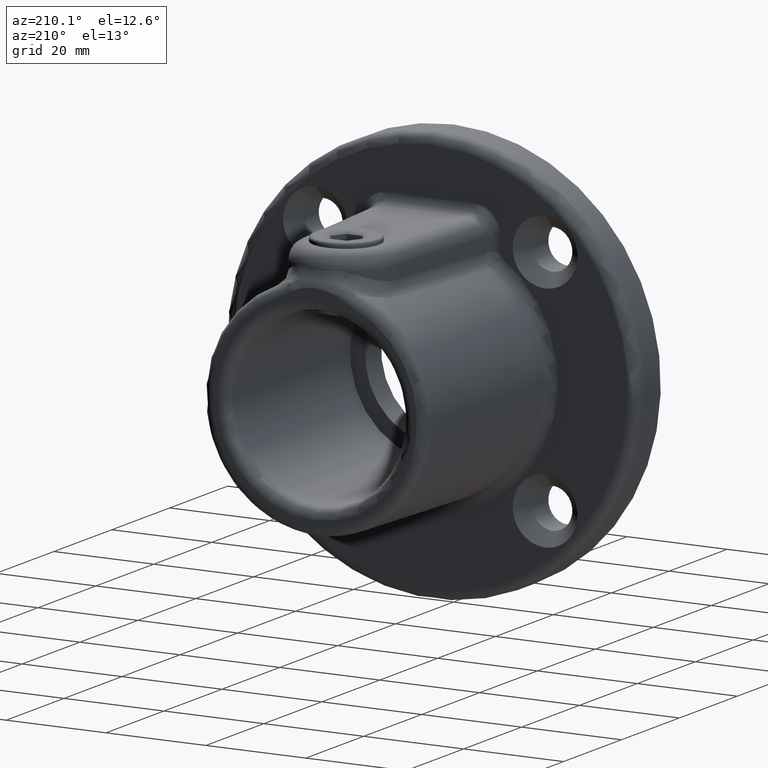
[diagram: clean part render]
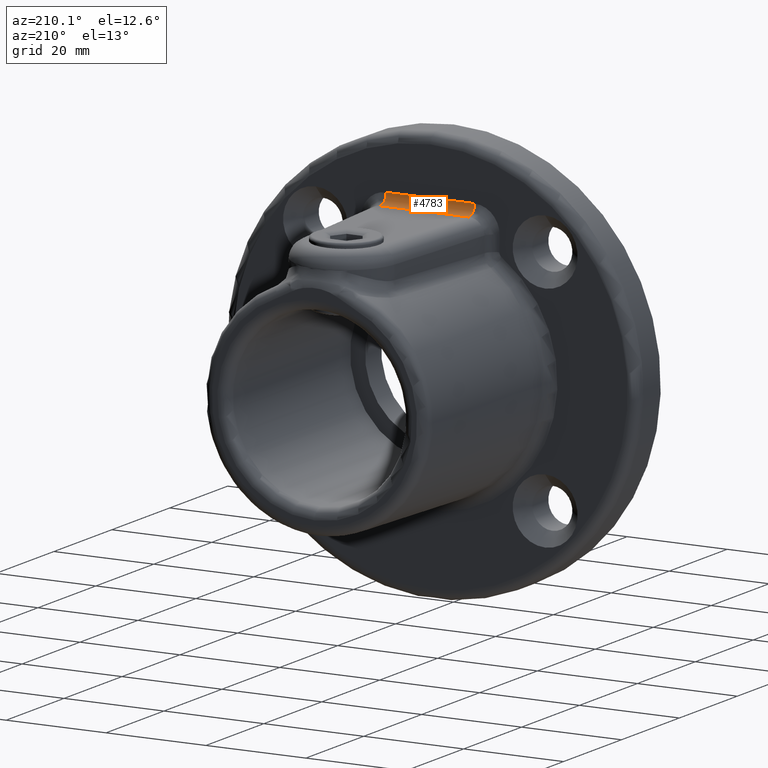
[diagram: same view with one face highlighted and labeled with its STEP entity id]
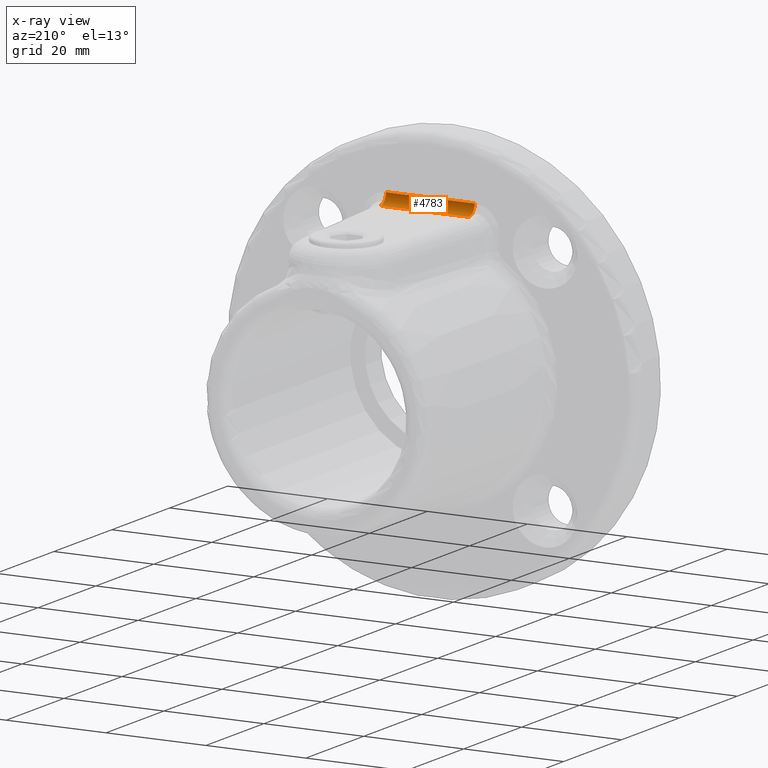
[diagram: x-ray of the same camera — body ghosted, the highlighted face saturated]
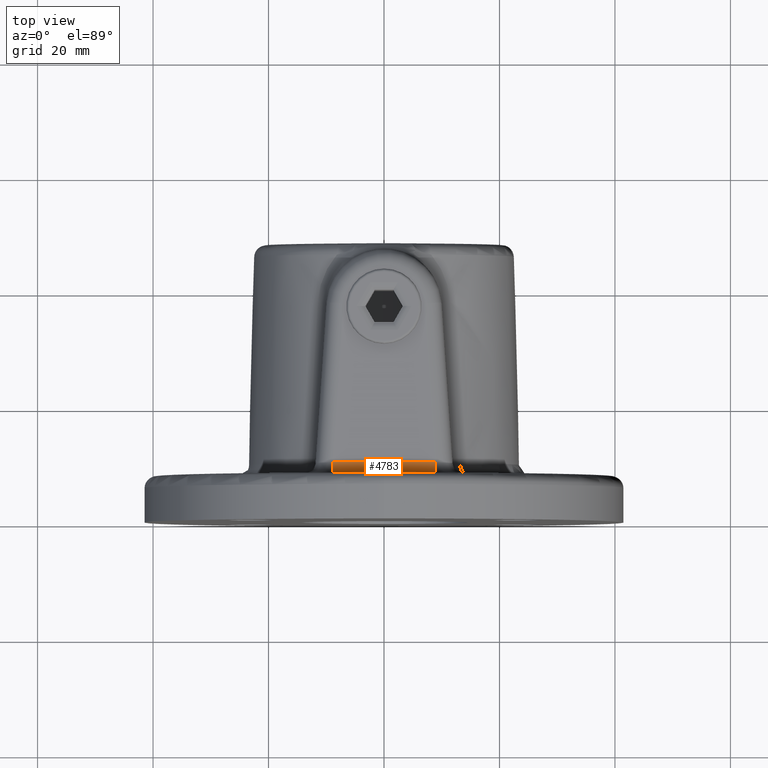
[diagram: same view with one face highlighted and labeled with its STEP entity id]
A machine part, auxiliary view. The second image highlights one B-rep face of the part: STEP entity #4783.
The next image is the same camera in x-ray: the body ghosted, the highlighted face saturated — about 0% of this face is hidden behind the body in this view.
A second angle (top view) of the same face is appended — the face is thin or edge-on in the first view.
In plain terms, the highlighted cylindrical surface (edge-blend (fillet) strip) has radius 2 mm, axis along (-1, 0, 0).
Its self-contained STEP definition (entity closure, byte-faithful):
#50 = DIRECTION ( 'NONE',  ( -1.000000000000000000, 0.000000000000000000, 0.000000000000000000 ) ) ;
#307 = CIRCLE ( 'NONE', #3067, 2.000000000000001776 ) ;
#1121 = DIRECTION ( 'NONE',  ( -1.000000000000000000, 0.000000000000000000, -0.000000000000000000 ) ) ;
#1294 = CARTESIAN_POINT ( 'NONE',  ( 0.000000000000000000, 10.00000000000000178, 30.00000000000000000 ) ) ;
#1337 = VERTEX_POINT ( 'NONE', #5221 ) ;
#1562 = ORIENTED_EDGE ( 'NONE', *, *, #13291, .F. ) ;
#2076 = VERTEX_POINT ( 'NONE', #4020 ) ;
#3067 = AXIS2_PLACEMENT_3D ( 'NONE', #5082, #6183, #13851 ) ;
#3272 = DIRECTION ( 'NONE',  ( -8.673617379884027583E-16, 0.000000000000000000, 1.000000000000000000 ) ) ;
#3763 = CARTESIAN_POINT ( 'NONE',  ( 8.993038310618123532, 10.00000000000000178, 28.00000000000000000 ) ) ;
#4020 = CARTESIAN_POINT ( 'NONE',  ( 8.856707664499015920, 9.999999999999994671, 28.00000000000000000 ) ) ;
#4312 = CARTESIAN_POINT ( 'NONE',  ( -8.856707664499017696, 10.00000000000000000, 30.00000000000000000 ) ) ;
#4710 = CYLINDRICAL_SURFACE ( 'NONE', #11929, 2.000000000000001776 ) ;
#4783 = ADVANCED_FACE ( 'NONE', ( #7131 ), #4710, .F. ) ;
#5028 = EDGE_LOOP ( 'NONE', ( #13734, #8772, #1562, #8431 ) ) ;
#5082 = CARTESIAN_POINT ( 'NONE',  ( 8.856707664499015920, 10.00000000000000178, 30.00000000000000000 ) ) ;
#5221 = CARTESIAN_POINT ( 'NONE',  ( -8.856707664499015920, 9.999999999999998224, 28.00000000000000000 ) ) ;
#5370 = LINE ( 'NONE', #11963, #13758 ) ;
#6183 = DIRECTION ( 'NONE',  ( -1.000000000000000000, -0.000000000000000000, -0.000000000000000000 ) ) ;
#6717 = DIRECTION ( 'NONE',  ( 0.000000000000000000, 0.000000000000000000, 1.000000000000000000 ) ) ;
#7131 = FACE_OUTER_BOUND ( 'NONE', #5028, .T. ) ;
#7800 = EDGE_CURVE ( 'NONE', #1337, #2076, #11028, .T. ) ;
#8417 = VERTEX_POINT ( 'NONE', #12678 ) ;
#8431 = ORIENTED_EDGE ( 'NONE', *, *, #7800, .F. ) ;
#8441 = DIRECTION ( 'NONE',  ( 1.000000000000000000, -0.000000000000000000, 0.000000000000000000 ) ) ;
#8609 = VECTOR ( 'NONE', #8441, 1000.000000000000000 ) ;
#8772 = ORIENTED_EDGE ( 'NONE', *, *, #11066, .F. ) ;
#10168 = VERTEX_POINT ( 'NONE', #13829 ) ;
#10467 = EDGE_CURVE ( 'NONE', #1337, #10168, #12917, .T. ) ;
#11028 = LINE ( 'NONE', #3763, #8609 ) ;
#11066 = EDGE_CURVE ( 'NONE', #8417, #10168, #5370, .T. ) ;
#11929 = AXIS2_PLACEMENT_3D ( 'NONE', #1294, #50, #6717 ) ;
#11963 = CARTESIAN_POINT ( 'NONE',  ( -8.993038310618123532, 8.000000000000000000, 30.00000000000000000 ) ) ;
#12678 = CARTESIAN_POINT ( 'NONE',  ( 8.856707664499015920, 8.000000000000000000, 30.00000000000000355 ) ) ;
#12917 = CIRCLE ( 'NONE', #13993, 2.000000000000001776 ) ;
#12941 = DIRECTION ( 'NONE',  ( -1.000000000000000000, -1.504632769052529411E-30, -8.673617379884043361E-16 ) ) ;
#13291 = EDGE_CURVE ( 'NONE', #2076, #8417, #307, .T. ) ;
#13734 = ORIENTED_EDGE ( 'NONE', *, *, #10467, .T. ) ;
#13758 = VECTOR ( 'NONE', #1121, 1000.000000000000000 ) ;
#13829 = CARTESIAN_POINT ( 'NONE',  ( -8.856707664499017696, 8.000000000000000000, 30.00000000000000000 ) ) ;
#13851 = DIRECTION ( 'NONE',  ( 0.000000000000000000, 0.000000000000000000, 1.000000000000000000 ) ) ;
#13993 = AXIS2_PLACEMENT_3D ( 'NONE', #4312, #12941, #3272 ) ;